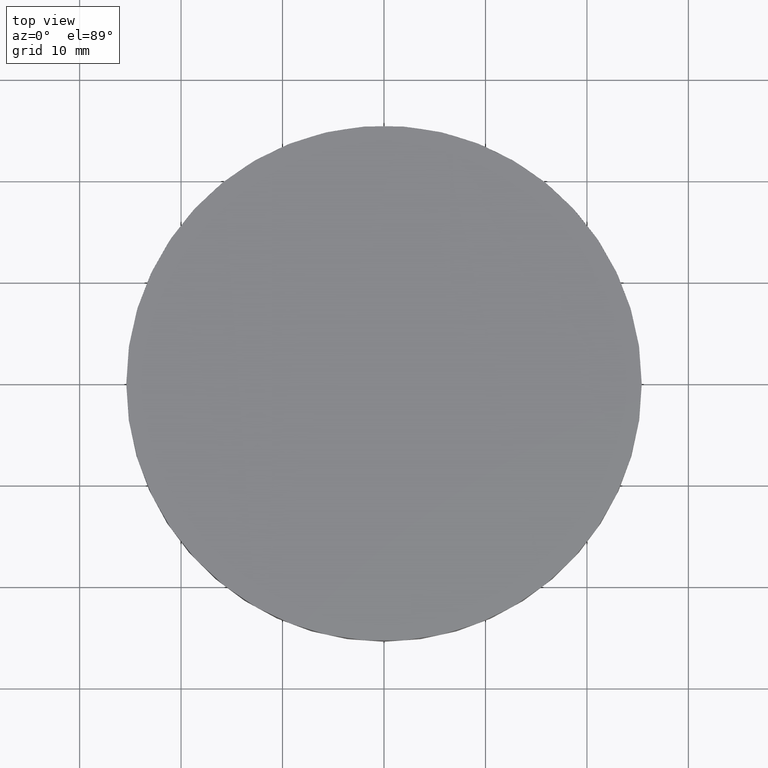
[diagram: clean part render]
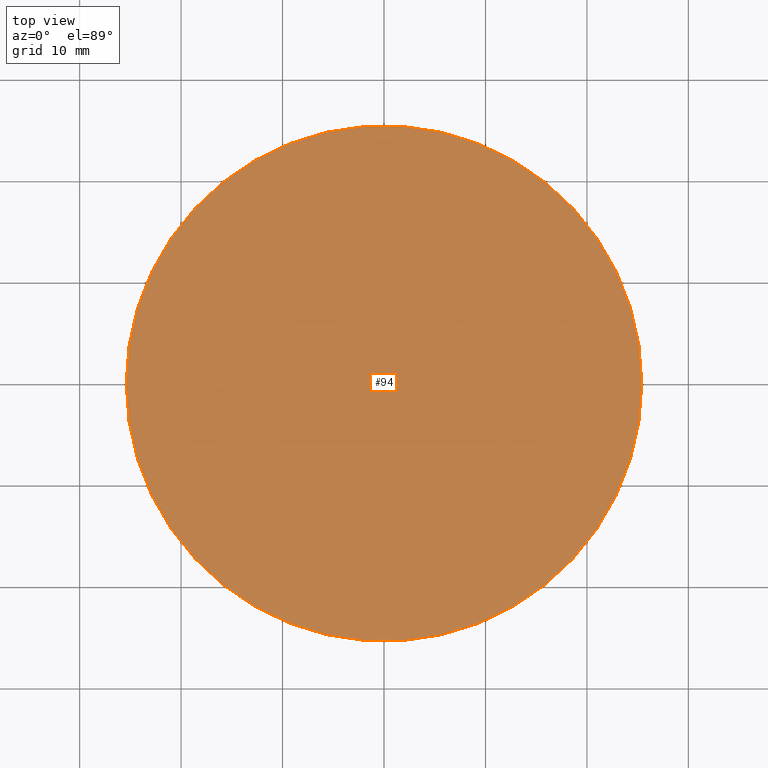
[diagram: same view with one face highlighted and labeled with its STEP entity id]
A machine part, top view. The second image highlights one B-rep face of the part: STEP entity #94.
In plain terms, the highlighted planar face has unit normal (0, 0, 1).
Its self-contained STEP definition (entity closure, byte-faithful):
#1 = EDGE_CURVE ( 'NONE', #216, #8, #36, .T. ) ;
#4 = AXIS2_PLACEMENT_3D ( 'NONE', #61, #170, #99 ) ;
#8 = VERTEX_POINT ( 'NONE', #196 ) ;
#25 = DIRECTION ( 'NONE',  ( 1.000000000000000000, 0.0000000000000000000, -0.0000000000000000000 ) ) ;
#28 = EDGE_CURVE ( 'NONE', #8, #216, #230, .T. ) ;
#35 = AXIS2_PLACEMENT_3D ( 'NONE', #185, #219, #100 ) ;
#36 = CIRCLE ( 'NONE', #4, 25.39999999999999900 ) ;
#60 = DIRECTION ( 'NONE',  ( 0.0000000000000000000, 0.0000000000000000000, 1.000000000000000000 ) ) ;
#61 = CARTESIAN_POINT ( 'NONE',  ( 9.992007221626412800E-016, 4.884981308350691100E-015, 6.000000000000000000 ) ) ;
#80 = EDGE_LOOP ( 'NONE', ( #131, #167 ) ) ;
#82 = CARTESIAN_POINT ( 'NONE',  ( 0.0000000000000000000, 52.02000000000000300, 6.000000000000000000 ) ) ;
#92 = FACE_OUTER_BOUND ( 'NONE', #80, .T. ) ;
#94 = ADVANCED_FACE ( 'NONE', ( #92 ), #169, .T. ) ;
#99 = DIRECTION ( 'NONE',  ( 1.000000000000000000, 0.0000000000000000000, 0.0000000000000000000 ) ) ;
#100 = DIRECTION ( 'NONE',  ( 1.000000000000000000, 0.0000000000000000000, 0.0000000000000000000 ) ) ;
#122 = AXIS2_PLACEMENT_3D ( 'NONE', #82, #60, #25 ) ;
#131 = ORIENTED_EDGE ( 'NONE', *, *, #28, .F. ) ;
#167 = ORIENTED_EDGE ( 'NONE', *, *, #1, .F. ) ;
#169 = PLANE ( 'NONE',  #122 ) ;
#170 = DIRECTION ( 'NONE',  ( -0.0000000000000000000, -0.0000000000000000000, -1.000000000000000000 ) ) ;
#185 = CARTESIAN_POINT ( 'NONE',  ( 9.992007221626412800E-016, 4.884981308350691100E-015, 6.000000000000000000 ) ) ;
#196 = CARTESIAN_POINT ( 'NONE',  ( 25.39999999999999900, 4.884981308350691100E-015, 6.000000000000000000 ) ) ;
#206 = CARTESIAN_POINT ( 'NONE',  ( -25.39999999999999900, 7.995584178184967200E-015, 6.000000000000000000 ) ) ;
#216 = VERTEX_POINT ( 'NONE', #206 ) ;
#219 = DIRECTION ( 'NONE',  ( -0.0000000000000000000, -0.0000000000000000000, -1.000000000000000000 ) ) ;
#230 = CIRCLE ( 'NONE', #35, 25.39999999999999900 ) ;